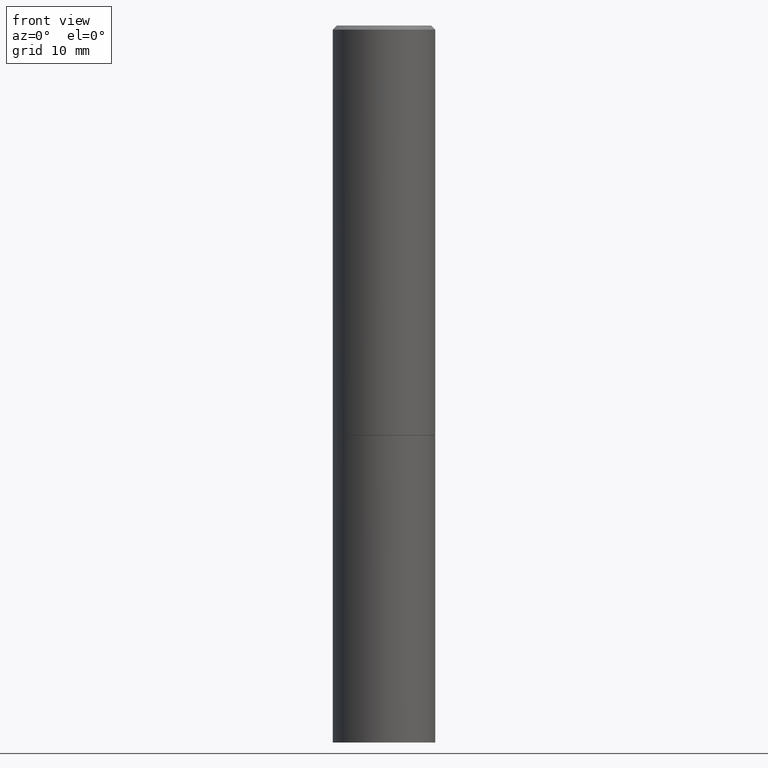
[diagram: clean part render]
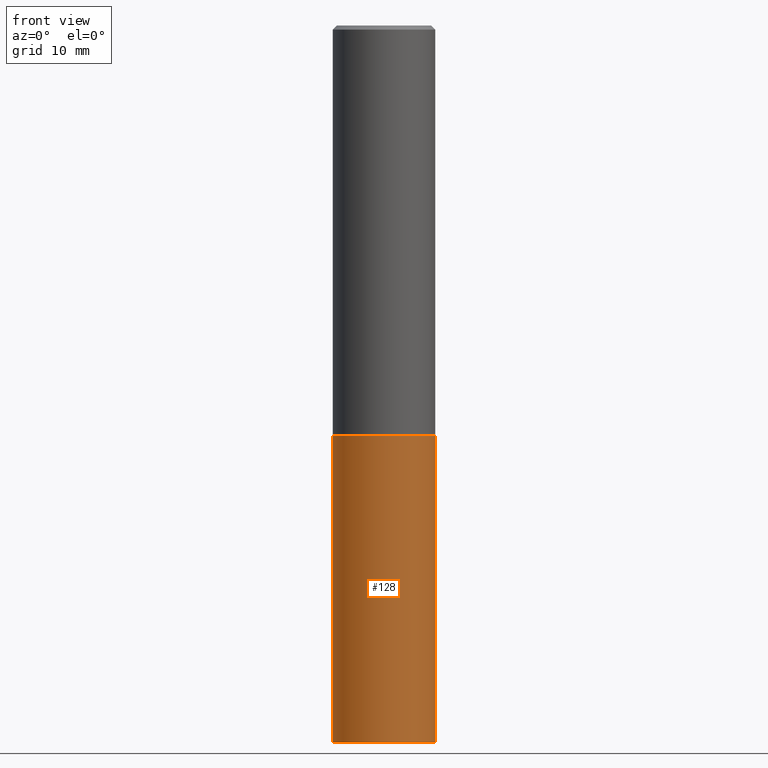
[diagram: same view with one face highlighted and labeled with its STEP entity id]
A machine part, front view. The second image highlights one B-rep face of the part: STEP entity #128.
In plain terms, the highlighted cylindrical surface (partial cylindrical patch) has radius 6.35 mm, axis along (-0, 0, 1).
Its self-contained STEP definition (entity closure, byte-faithful):
#3 = EDGE_CURVE ( 'NONE', #189, #167, #10, .T. ) ;
#7 = CARTESIAN_POINT ( 'NONE',  ( 8.559140821647976968E-29, -1.222018468595100934E-14, -3.500000000000000000 ) ) ;
#10 = LINE ( 'NONE', #275, #133 ) ;
#14 = DIRECTION ( 'NONE',  ( -2.445468806185136877E-29, 3.491481338843145188E-15, 1.000000000000000000 ) ) ;
#45 = CYLINDRICAL_SURFACE ( 'NONE', #263, 0.2500000000000000000 ) ;
#50 = ORIENTED_EDGE ( 'NONE', *, *, #69, .T. ) ;
#53 = VERTEX_POINT ( 'NONE', #82 ) ;
#56 = ORIENTED_EDGE ( 'NONE', *, *, #336, .F. ) ;
#59 = DIRECTION ( 'NONE',  ( -2.445468806185136597E-29, 3.491481338843145583E-15, 1.000000000000000000 ) ) ;
#63 = ORIENTED_EDGE ( 'NONE', *, *, #161, .T. ) ;
#69 = EDGE_CURVE ( 'NONE', #240, #53, #154, .T. ) ;
#73 = VECTOR ( 'NONE', #14, 39.37007874015748143 ) ;
#82 = CARTESIAN_POINT ( 'NONE',  ( 0.2500000000000000000, -8.728703347107857054E-15, -2.000000000000000000 ) ) ;
#85 = AXIS2_PLACEMENT_3D ( 'NONE', #276, #59, #282 ) ;
#91 = FACE_OUTER_BOUND ( 'NONE', #348, .T. ) ;
#99 = DIRECTION ( 'NONE',  ( -2.445468806185136597E-29, 3.491481338843145583E-15, 1.000000000000000000 ) ) ;
#128 = ADVANCED_FACE ( 'NONE', ( #91 ), #45, .T. ) ;
#133 = VECTOR ( 'NONE', #250, 39.37007874015748143 ) ;
#136 = DIRECTION ( 'NONE',  ( 1.000000000000000000, -6.982962677686266711E-15, 4.876176775795935793E-29 ) ) ;
#137 = DIRECTION ( 'NONE',  ( -2.445468806185136597E-29, 3.491481338843145583E-15, 1.000000000000000000 ) ) ;
#139 = AXIS2_PLACEMENT_3D ( 'NONE', #7, #137, #220 ) ;
#154 = LINE ( 'NONE', #237, #73 ) ;
#160 = CARTESIAN_POINT ( 'NONE',  ( -0.2500000000000000000, -7.825216842418399394E-15, -3.500000000000000000 ) ) ;
#161 = EDGE_CURVE ( 'NONE', #189, #240, #223, .T. ) ;
#167 = VERTEX_POINT ( 'NONE', #252 ) ;
#189 = VERTEX_POINT ( 'NONE', #160 ) ;
#220 = DIRECTION ( 'NONE',  ( 1.000000000000000000, -6.982962677686270655E-15, 0.000000000000000000 ) ) ;
#223 = CIRCLE ( 'NONE', #139, 0.2500000000000000000 ) ;
#237 = CARTESIAN_POINT ( 'NONE',  ( 0.2500000000000000000, -1.745740669421566678E-15, 1.219044193948983948E-29 ) ) ;
#240 = VERTEX_POINT ( 'NONE', #362 ) ;
#250 = DIRECTION ( 'NONE',  ( -2.445468806185136877E-29, 3.491481338843145188E-15, 1.000000000000000000 ) ) ;
#252 = CARTESIAN_POINT ( 'NONE',  ( -0.2500000000000000000, -7.825216842418399394E-15, -2.000000000000000000 ) ) ;
#263 = AXIS2_PLACEMENT_3D ( 'NONE', #273, #99, #136 ) ;
#273 = CARTESIAN_POINT ( 'NONE',  ( 0.000000000000000000, 0.000000000000000000, 0.000000000000000000 ) ) ;
#275 = CARTESIAN_POINT ( 'NONE',  ( -0.2500000000000000000, 1.776356839400250465E-15, -1.229733772563726445E-29 ) ) ;
#276 = CARTESIAN_POINT ( 'NONE',  ( 4.890937612370273194E-29, -6.982962677686291165E-15, -2.000000000000000000 ) ) ;
#282 = DIRECTION ( 'NONE',  ( 1.000000000000000000, -6.982962677686266711E-15, 0.000000000000000000 ) ) ;
#336 = EDGE_CURVE ( 'NONE', #167, #53, #359, .T. ) ;
#348 = EDGE_LOOP ( 'NONE', ( #360, #63, #50, #56 ) ) ;
#359 = CIRCLE ( 'NONE', #85, 0.2500000000000000000 ) ;
#360 = ORIENTED_EDGE ( 'NONE', *, *, #3, .F. ) ;
#362 = CARTESIAN_POINT ( 'NONE',  ( 0.2500000000000000000, -1.396592535537257602E-14, -3.500000000000000000 ) ) ;